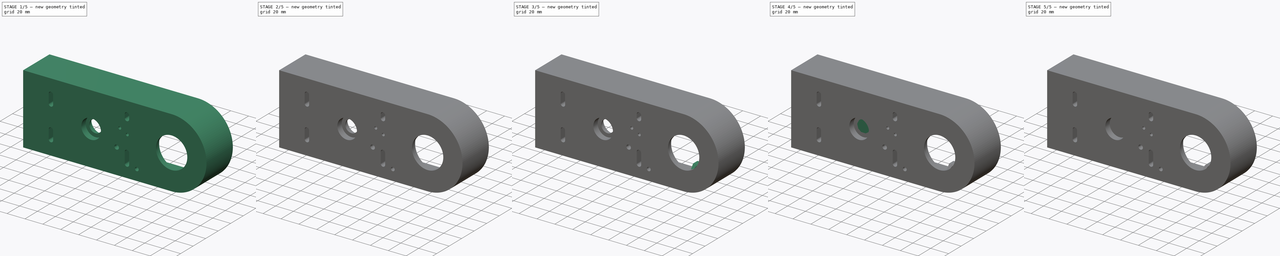
[diagram: build sequence overview — one tinted view per stage of 5, left to right]
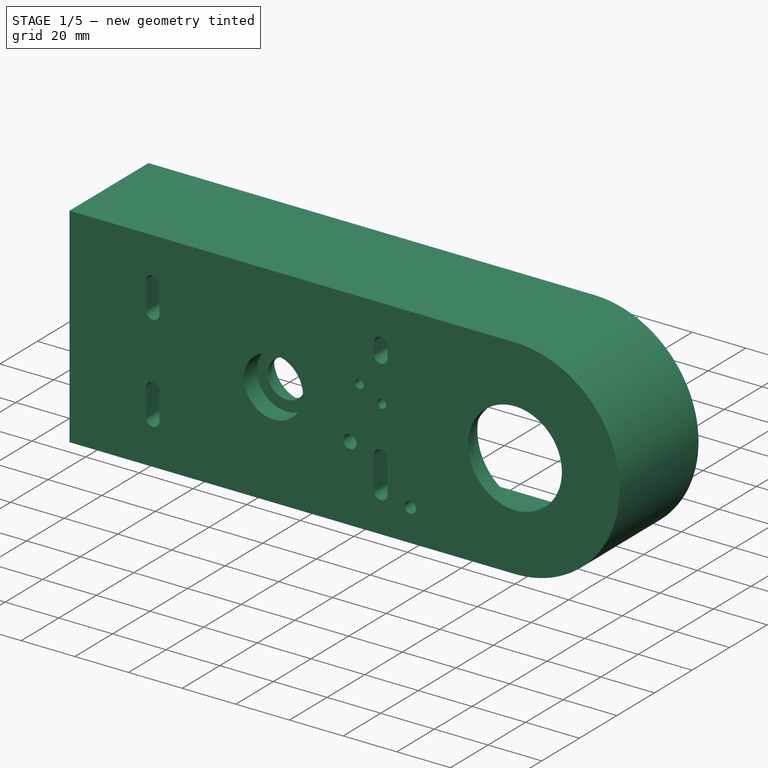
[diagram: stage 1 of 5 — iso view after this stage's code; geometry added in this stage tinted green]
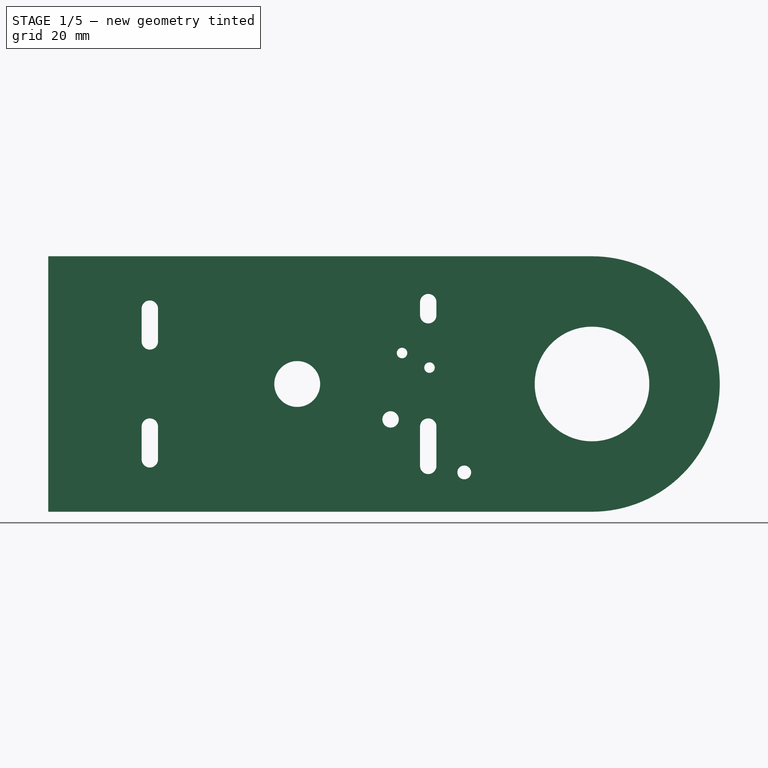
[diagram: stage 1 of 5 — front view after this stage's code; geometry added in this stage tinted green]
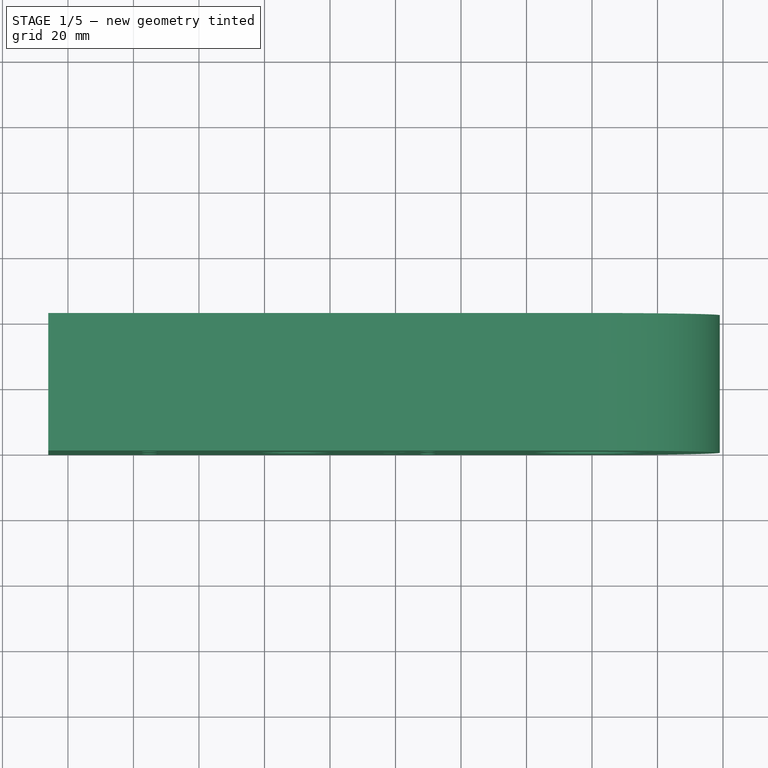
[diagram: stage 1 of 5 — top view after this stage's code; geometry added in this stage tinted green]
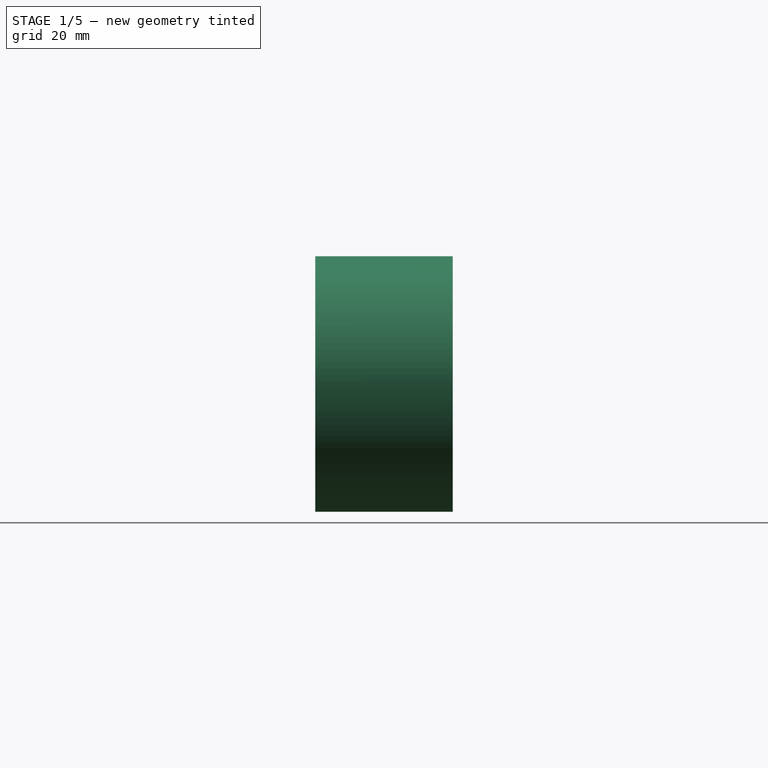
[diagram: stage 1 of 5 — right view after this stage's code; geometry added in this stage tinted green]
FCSTD DOCUMENT  (FreeCAD 0.19R)
Label: Arm1_modified
License: All rights reserved
LicenseURL: http://en.wikipedia.org/wiki/All_rights_reserved
objects: PartDesign::Pad×9, Sketcher::SketchObject×5, PartDesign::Pocket×3, Part::Feature×1, PartDesign::FeatureBase×1, PartDesign::Mirrored×1, PartDesign::Chamfer×1, PartDesign::Fillet×1, PartDesign::Body×1
note: 37 computed .brp shape members not serialized (recipe doc carries the construction recipe); baked Part::Feature solids carry a one-line shape summary decoded from their .brp

FEATURE [Part::Feature] Part__Feature  label="Arm 1_Arm 1"
  shape: bbox 205 x 42 x 78 mm, 134 faces (baked)
FEATURE [PartDesign::FeatureBase] BaseFeature
  BaseFeature = -> Part__Feature
FEATURE [PartDesign::Pad] Pad
  BaseFeature = -> BaseFeature
  Direction = (1,1,1)
  Length = 12
  Length2 = 100
  Profile = -> BaseFeature [Face103]
  Type = 0
FEATURE [PartDesign::Pad] Pad001
  BaseFeature = -> Pad
  Direction = (1,1,1)
  Length = 12
  Length2 = 100
  Profile = -> Pad [Face21]
  Type = 0
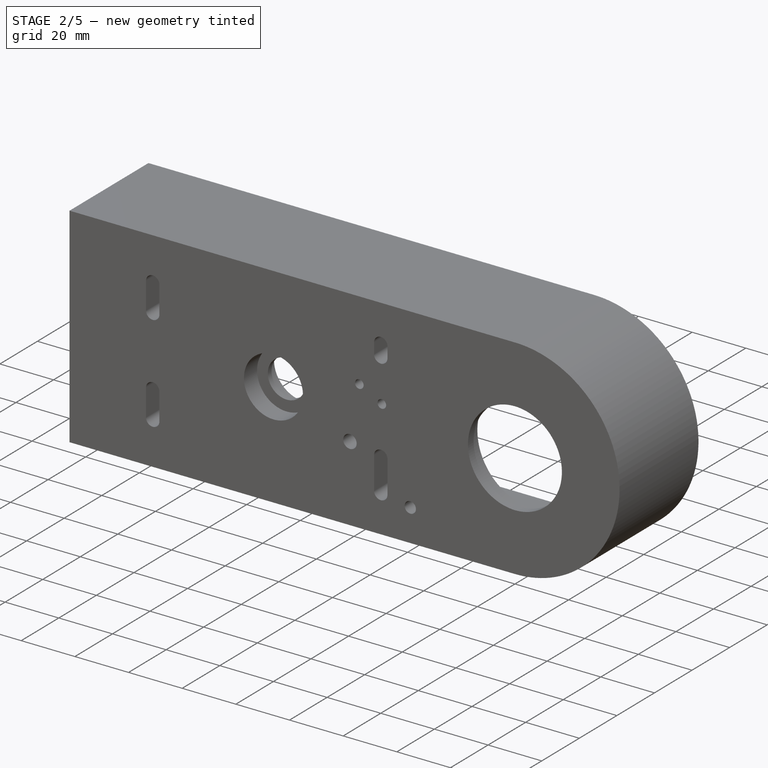
[diagram: stage 2 of 5 — iso view after this stage's code; geometry added in this stage tinted green]
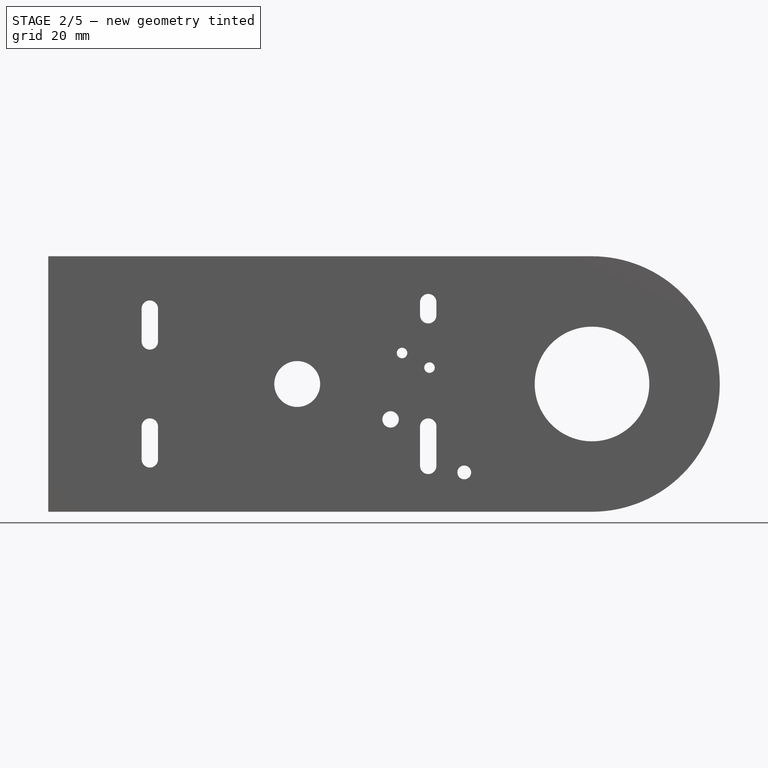
[diagram: stage 2 of 5 — front view after this stage's code; geometry added in this stage tinted green]
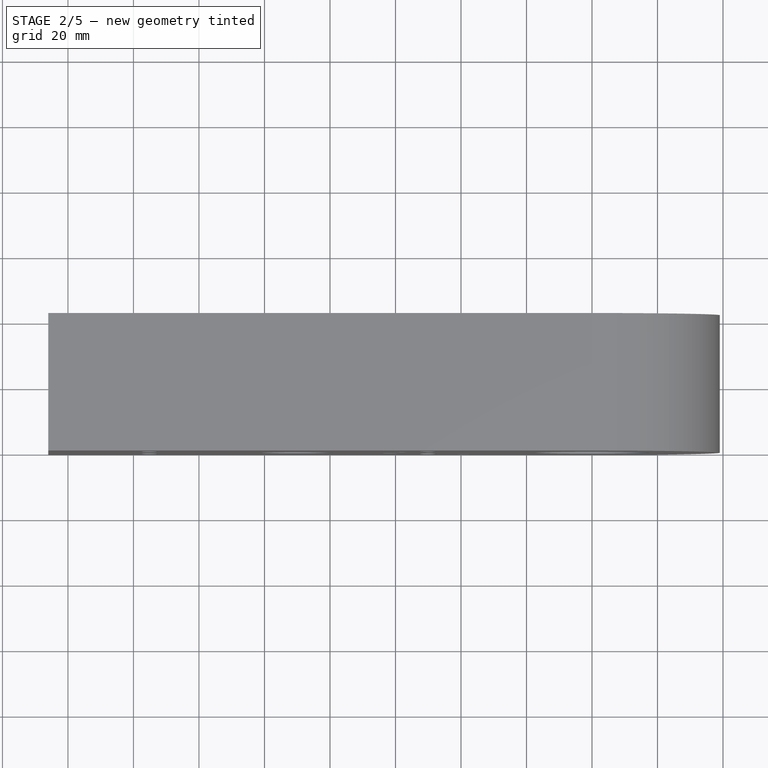
[diagram: stage 2 of 5 — top view after this stage's code; geometry added in this stage tinted green]
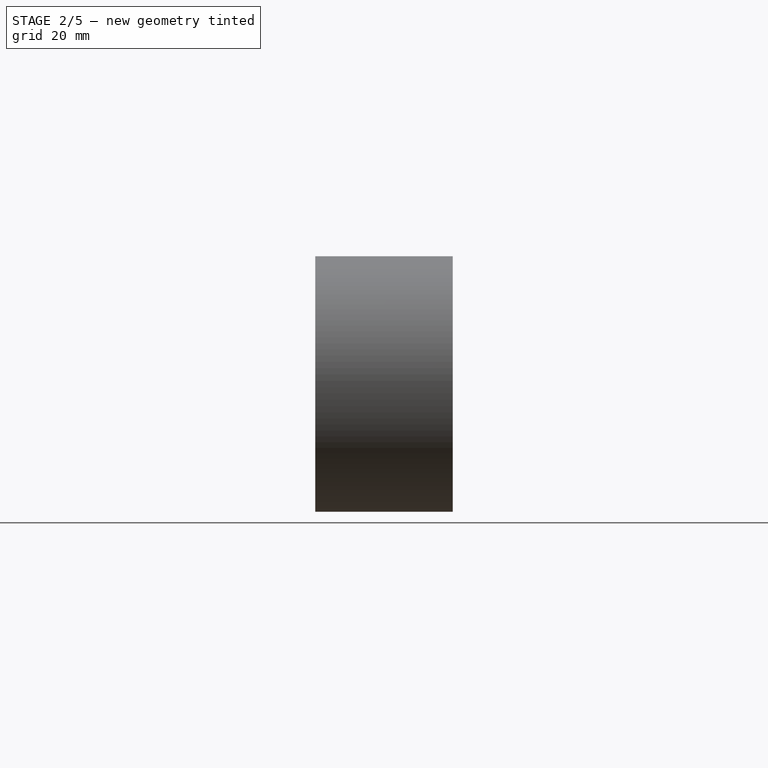
[diagram: stage 2 of 5 — right view after this stage's code; geometry added in this stage tinted green]
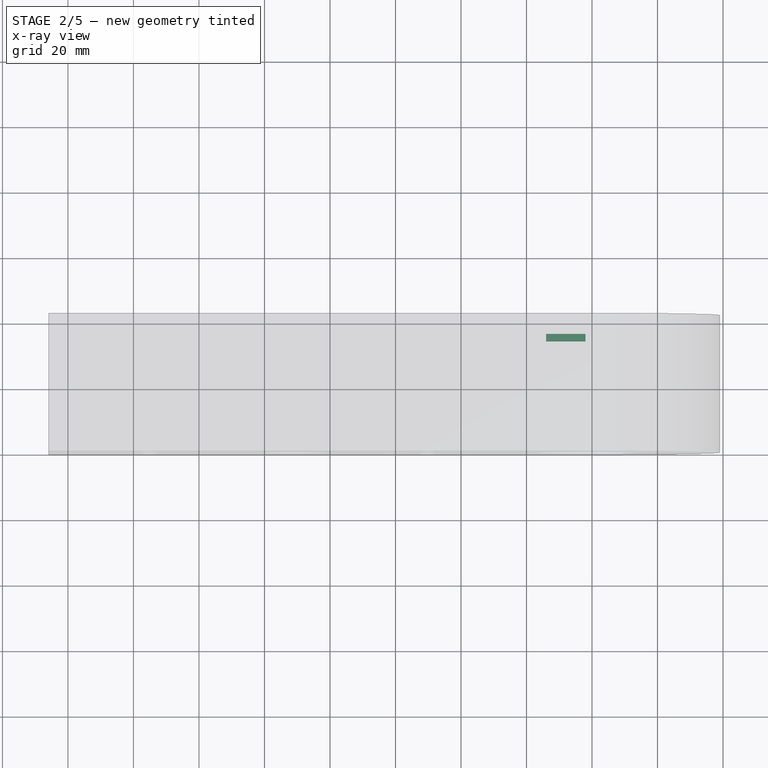
[diagram: stage 2 of 5 — x-ray composite at the top view; earlier geometry ghosted, this stage's added geometry solid]
FEATURE [PartDesign::Pad] Pad002
  BaseFeature = -> Pad001
  Direction = (1,1,1)
  Length = 12
  Length2 = 100
  Profile = -> Pad001 [Face17]
  Type = 0
FEATURE [PartDesign::Pad] Pad003
  BaseFeature = -> Pad002
  Direction = (1,1,1)
  Length = 12
  Length2 = 100
  Profile = -> Pad002 [Face23]
  Type = 0
FEATURE [PartDesign::Pad] Pad004
  BaseFeature = -> Pad003
  Direction = (1,1,1)
  Length = 12
  Length2 = 100
  Profile = -> Pad003 [Face28]
  Type = 0
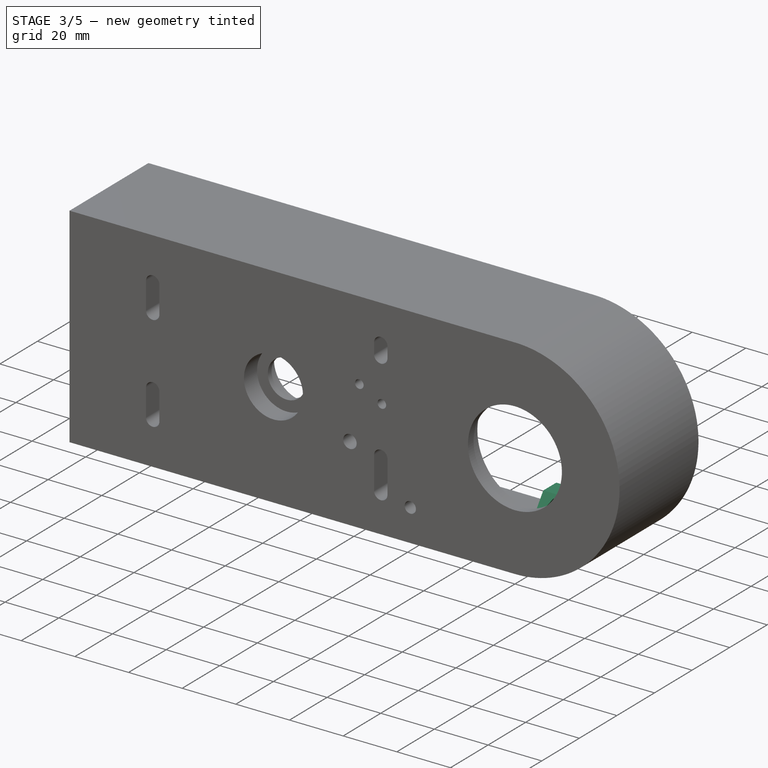
[diagram: stage 3 of 5 — iso view after this stage's code; geometry added in this stage tinted green]
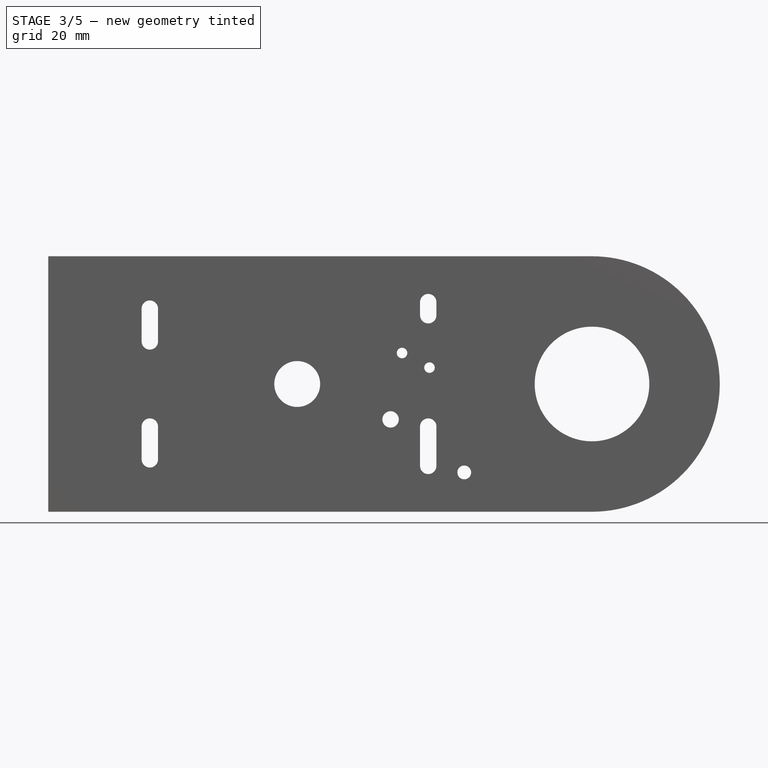
[diagram: stage 3 of 5 — front view after this stage's code; geometry added in this stage tinted green]
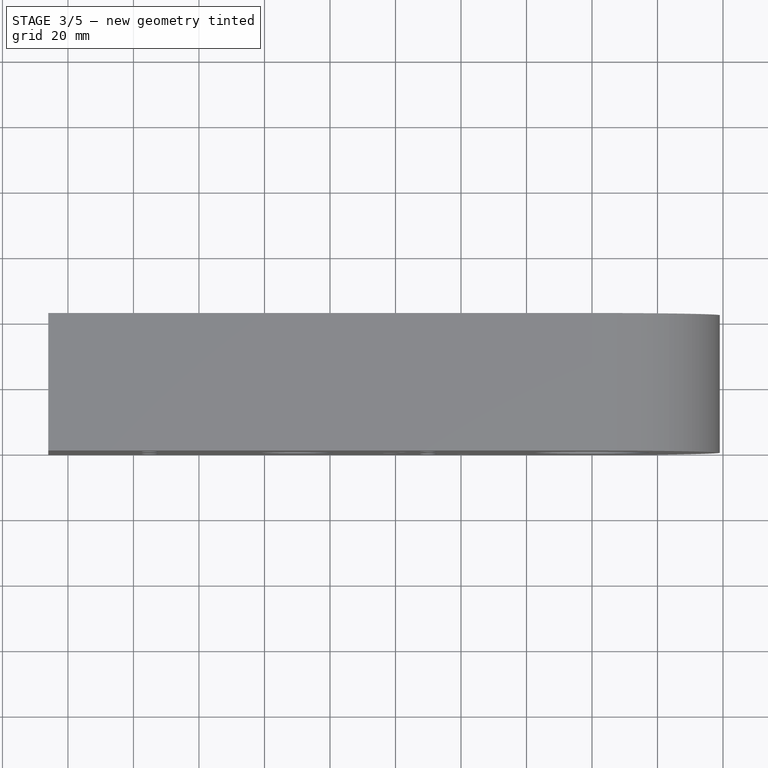
[diagram: stage 3 of 5 — top view after this stage's code; geometry added in this stage tinted green]
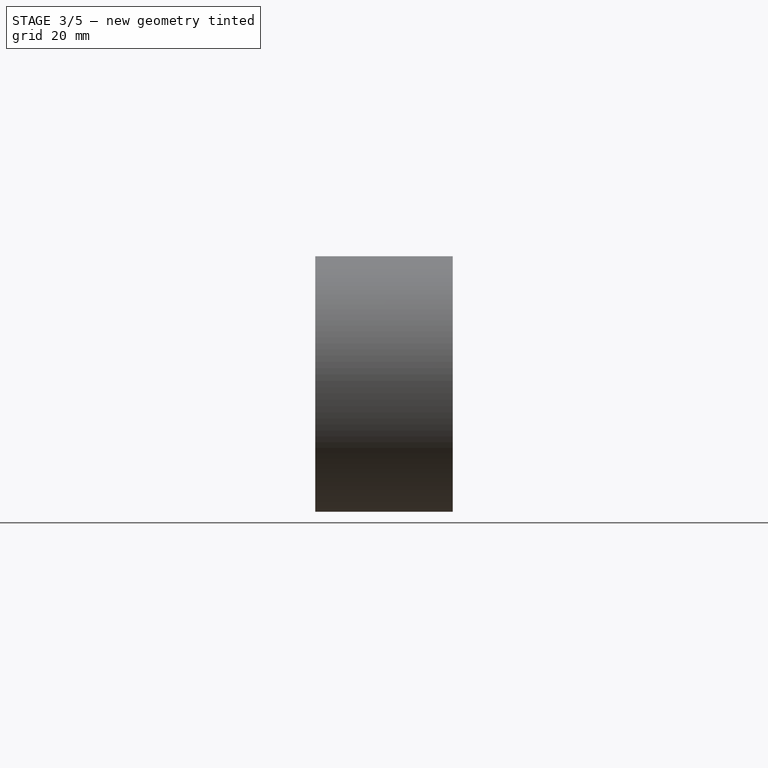
[diagram: stage 3 of 5 — right view after this stage's code; geometry added in this stage tinted green]
FEATURE [PartDesign::Pad] Pad005
  BaseFeature = -> Pad004
  Direction = (1,1,1)
  Length = 12
  Length2 = 100
  Profile = -> Pad004 [Face24]
  Type = 0
FEATURE [Sketcher::SketchObject] Sketch
  ExternalGeometry = -> [Pad005]
  FullyConstrained = true
  MapMode = 5
  Placement = pos=(0,42,0) rot=(0,0.707107,0.707107;3.14159rad)
  Support = -> [Pad005]
  sketch-geometry (40):
    g0: LineSegment StartX=2 StartY=35 StartZ=0 EndX=14 EndY=35 EndZ=0
    g1: LineSegment StartX=14 StartY=35 StartZ=0 EndX=14 EndY=28 EndZ=0
    g2: LineSegment StartX=14 StartY=28 StartZ=0 EndX=2 EndY=28 EndZ=0
    g3: LineSegment StartX=2 StartY=28 StartZ=0 EndX=2 EndY=35 EndZ=0
    g4: LineSegment StartX=66 StartY=35 StartZ=0 EndX=78 EndY=35 EndZ=0
    g5: LineSegment StartX=78 StartY=35 StartZ=0 EndX=78 EndY=28 EndZ=0
    g6: LineSegment StartX=78 StartY=28 StartZ=0 EndX=66 EndY=28 EndZ=0
    g7: LineSegment StartX=66 StartY=28 StartZ=0 EndX=66 EndY=35 EndZ=0
    g8: LineSegment StartX=130 StartY=35 StartZ=0 EndX=142 EndY=35 EndZ=0
    g9: LineSegment StartX=142 StartY=35 StartZ=0 EndX=142 EndY=28 EndZ=0
    g10: LineSegment StartX=142 StartY=28 StartZ=0 EndX=130 EndY=28 EndZ=0
    g11: LineSegment StartX=130 StartY=28 StartZ=0 EndX=130 EndY=35 EndZ=0
    g12: LineSegment StartX=2 StartY=-35 StartZ=0 EndX=14 EndY=-35 EndZ=0
    g13: LineSegment StartX=14 StartY=-35 StartZ=0 EndX=14 EndY=-28 EndZ=0
    g14: LineSegment StartX=14 StartY=-28 StartZ=0 EndX=2 EndY=-28 EndZ=0
    g15: LineSegment StartX=2 StartY=-28 StartZ=0 EndX=2 EndY=-35 EndZ=0
    g16: LineSegment StartX=66 StartY=-35 StartZ=0 EndX=78 EndY=-35 EndZ=0
    g17: LineSegment StartX=78 StartY=-35 StartZ=0 EndX=78 EndY=-28 EndZ=0
    g18: LineSegment StartX=78 StartY=-28 StartZ=0 EndX=66 EndY=-28 EndZ=0
    g19: LineSegment StartX=66 StartY=-28 StartZ=0 EndX=66 EndY=-35 EndZ=0
    g20: LineSegment StartX=130 StartY=-35 StartZ=0 EndX=142 EndY=-35 EndZ=0
    g21: LineSegment StartX=142 StartY=-35 StartZ=0 EndX=142 EndY=-28 EndZ=0
    g22: LineSegment StartX=142 StartY=-28 StartZ=0 EndX=130 EndY=-28 EndZ=0
    g23: LineSegment StartX=130 StartY=-28 StartZ=0 EndX=130 EndY=-35 EndZ=0
    g24: ArcOfCircle CenterX=0 CenterY=0 CenterZ=0 NormalX=0 NormalY=0 NormalZ=1 AngleXU=0 Radius=36 StartAngle=2.9671 EndAngle=3.31609
    g25: LineSegment StartX=-35.4533 StartY=6.25 StartZ=0 EndX=-27.4533 EndY=6.25 EndZ=0
    g26: LineSegment StartX=-27.4533 StartY=6.25 StartZ=0 EndX=-27.4533 EndY=-6.25 EndZ=0
    g27: LineSegment StartX=-27.4533 StartY=-6.25 StartZ=0 EndX=-35.4533 EndY=-6.25 EndZ=0
    g28: LineSegment StartX=-35.4533 StartY=-6.25 StartZ=0 EndX=-35.4533 EndY=6.25 EndZ=0
    g29: Circle CenterX=-32 CenterY=0 CenterZ=0 NormalX=0 NormalY=0 NormalZ=1 AngleXU=0 Radius=1.65
    g30: Circle CenterX=8 CenterY=32 CenterZ=0 NormalX=0 NormalY=0 NormalZ=1 AngleXU=0 Radius=1.65
    g31: Circle CenterX=72 CenterY=32 CenterZ=0 NormalX=0 NormalY=0 NormalZ=1 AngleXU=0 Radius=1.65
    g32: Circle CenterX=136 CenterY=32 CenterZ=0 NormalX=0 NormalY=0 NormalZ=1 AngleXU=0 Radius=1.65
    g33: Circle CenterX=136 CenterY=-32 CenterZ=0 NormalX=0 NormalY=0 NormalZ=1 AngleXU=0 Radius=1.65
    g34: Circle CenterX=72 CenterY=-32 CenterZ=0 NormalX=0 NormalY=0 NormalZ=1 AngleXU=0 Radius=1.65
    g35: Circle CenterX=8 CenterY=-32 CenterZ=0 NormalX=0 NormalY=0 NormalZ=1 AngleXU=0 Radius=1.65
    g36: LineSegment StartX=8 StartY=32 StartZ=0 EndX=136 EndY=32 EndZ=0
    g37: LineSegment StartX=136 StartY=32 StartZ=0 EndX=136 EndY=-32 EndZ=0
    g38: LineSegment StartX=136 StartY=-32 StartZ=0 EndX=8 EndY=-32 EndZ=0
    g39: LineSegment StartX=8 StartY=-32 StartZ=0 EndX=8 EndY=32 EndZ=0
  constraints (113):
    c: Coincident(g0,g1)
    c: Coincident(g1,g2)
    c: Coincident(g2,g3)
    c: Coincident(g3,g0)
    c: Horizontal(g0)
    c: Horizontal(g2)
    c: Vertical(g1)
    c: Vertical(g3)
    c: PointOnObject(g0,g-3)
    c: Coincident(g4,g5)
    c: Coincident(g5,g6)
    c: Coincident(g6,g7)
    c: Coincident(g7,g4)
    c: Horizontal(g4)
    c: Horizontal(g6)
    c: Vertical(g5)
    c: Vertical(g7)
    c: PointOnObject(g4,g-3)
    c: Coincident(g8,g9)
    c: Coincident(g9,g10)
    c: Coincident(g10,g11)
    c: Coincident(g11,g8)
    c: Horizontal(g8)
    c: Horizontal(g10)
    c: Vertical(g9)
    c: Vertical(g11)
    c: PointOnObject(g8,g-3)
    c: Coincident(g12,g13)
    c: Coincident(g13,g14)
    c: Coincident(g14,g15)
    c: Coincident(g15,g12)
    c: Horizontal(g12)
    c: Horizontal(g14)
    c: Vertical(g13)
    c: Vertical(g15)
    c: PointOnObject(g12,g-4)
    c: Coincident(g16,g17)
    c: Coincident(g17,g18)
    c: Coincident(g18,g19)
    c: Coincident(g19,g16)
    c: Horizontal(g16)
    c: Horizontal(g18)
    c: Vertical(g17)
    c: Vertical(g19)
    c: PointOnObject(g16,g-4)
    c: Coincident(g20,g21)
    c: Coincident(g21,g22)
    c: Coincident(g22,g23)
    c: Coincident(g23,g20)
    c: Horizontal(g20)
    c: Horizontal(g22)
    c: Vertical(g21)
    c: Vertical(g23)
    c: PointOnObject(g20,g-4)
    c: Coincident(g24,g-1)
    c: Coincident(g25,g26)
    c: Coincident(g26,g27)
    c: Coincident(g27,g28)
    c: Coincident(g28,g25)
    c: Horizontal(g25)
    c: Horizontal(g27)
    c: Coincident(g25,g24)
    c: Coincident(g27,g24)
    c: Symmetric(g25,g26,g-1)
    c: DistanceX(g0,g0) = 12
    c: Equal(g0,g4)
    c: Equal(g4,g8)
    c: Equal(g0,g12)
    c: Equal(g12,g16)
    c: Equal(g16,g20)
    c: Equal(g3,g7)
    c: Equal(g7,g11)
    c: Equal(g11,g23)
    c: Equal(g23,g19)
    c: Equal(g19,g15)
    c: DistanceX(g20,g-4) = 16
    c: DistanceX(g16,g20) = 52
    c: DistanceX(g12,g16) = 52
    c: Vertical(g1,g13)
    c: Vertical(g6,g18)
    c: Vertical(g10,g22)
    c: DistanceY(g9,g9) = 7
    c: PointOnObject(g29,g-1)
    c: Equal(g29,g30)
    c: Equal(g30,g31)
    c: Equal(g31,g32)
    c: Equal(g32,g33)
    c: Equal(g33,g34)
    c: Equal(g34,g35)
    c: Radius(g29) = 1.65
    c: Radius(g24) = 36
    c: DistanceX(g25,g25) = 8
    c: Coincident(g36,g37)
    c: Coincident(g37,g38)
    c: Coincident(g38,g39)
    c: Coincident(g39,g36)
    c: Horizontal(g36)
    c: Horizontal(g38)
    c: Vertical(g37)
    c: Coincident(g36,g30)
    c: Coincident(g37,g33)
    c: Coincident(g35,g38)
    c: PointOnObject(g34,g38)
    c: Coincident(g32,g36)
    c: PointOnObject(g31,g36)
    c: DistanceY(g39,g39) = 64
    c: DistanceX(g30,g31) = 64
    c: DistanceX(g31,g32) = 64
    c: Vertical(g34,g31)
    c: Symmetric(g35,g30,g-1)
    c: DistanceX(g30) = 8
    c: DistanceX(g29) = -32
    c: DistanceY(g26,g26) = 12.5
FEATURE [PartDesign::Pad] Pad006
  BaseFeature = -> Pad005
  Direction = (1,1,1)
  Length = 12
  Length2 = 100
  Profile = -> Sketch
  Reversed = true
  Type = 0
FEATURE [Sketcher::SketchObject] Sketch001
  ExternalGeometry = -> [Pad006]
  FullyConstrained = true
  MapMode = 5
  Placement = pos=(0,30,0) rot=(1,0,0;1.5708rad)
  Support = -> [Pad006]
  sketch-geometry (49):
    g0: LineSegment StartX=-134.383 StartY=-34.8 StartZ=0 EndX=-132.767 EndY=-32 EndZ=0
    g1: LineSegment StartX=-132.767 StartY=-32 StartZ=0 EndX=-134.383 EndY=-29.2 EndZ=0
    g2: LineSegment StartX=-134.383 StartY=-29.2 StartZ=0 EndX=-137.617 EndY=-29.2 EndZ=0
    g3: LineSegment StartX=-137.617 StartY=-29.2 StartZ=0 EndX=-139.233 EndY=-32 EndZ=0
    g4: LineSegment StartX=-139.233 StartY=-32 StartZ=0 EndX=-137.617 EndY=-34.8 EndZ=0
    g5: LineSegment StartX=-137.617 StartY=-34.8 StartZ=0 EndX=-134.383 EndY=-34.8 EndZ=0
    g6: Circle CenterX=-136 CenterY=-32 CenterZ=0 NormalX=0 NormalY=0 NormalZ=1 AngleXU=0 Radius=3.23316
    g7: LineSegment StartX=-70.3834 StartY=-34.8 StartZ=0 EndX=-68.7668 EndY=-32 EndZ=0
    g8: LineSegment StartX=-68.7668 StartY=-32 StartZ=0 EndX=-70.3834 EndY=-29.2 EndZ=0
    g9: LineSegment StartX=-70.3834 StartY=-29.2 StartZ=0 EndX=-73.6166 EndY=-29.2 EndZ=0
    g10: LineSegment StartX=-73.6166 StartY=-29.2 StartZ=0 EndX=-75.2332 EndY=-32 EndZ=0
    g11: LineSegment StartX=-75.2332 StartY=-32 StartZ=0 EndX=-73.6166 EndY=-34.8 EndZ=0
    g12: LineSegment StartX=-73.6166 StartY=-34.8 StartZ=0 EndX=-70.3834 EndY=-34.8 EndZ=0
    g13: Circle CenterX=-72 CenterY=-32 CenterZ=0 NormalX=0 NormalY=0 NormalZ=1 AngleXU=0 Radius=3.23316
    g14: LineSegment StartX=-6.38342 StartY=-34.8 StartZ=0 EndX=-4.76684 EndY=-32 EndZ=0
    g15: LineSegment StartX=-4.76684 StartY=-32 StartZ=0 EndX=-6.38342 EndY=-29.2 EndZ=0
    g16: LineSegment StartX=-6.38342 StartY=-29.2 StartZ=0 EndX=-9.61658 EndY=-29.2 EndZ=0
    g17: LineSegment StartX=-9.61658 StartY=-29.2 StartZ=0 EndX=-11.2332 EndY=-32 EndZ=0
    g18: LineSegment StartX=-11.2332 StartY=-32 StartZ=0 EndX=-9.61658 EndY=-34.8 EndZ=0
    g19: LineSegment StartX=-9.61658 StartY=-34.8 StartZ=0 EndX=-6.38342 EndY=-34.8 EndZ=0
    g20: Circle CenterX=-8 CenterY=-32 CenterZ=0 NormalX=0 NormalY=0 NormalZ=1 AngleXU=0 Radius=3.23316
    g21: LineSegment StartX=34.8 StartY=-1.61658 StartZ=0 EndX=34.8 EndY=1.61658 EndZ=0
    g22: LineSegment StartX=34.8 StartY=1.61658 StartZ=0 EndX=32 EndY=3.23316 EndZ=0
    g23: LineSegment StartX=32 StartY=3.23316 StartZ=0 EndX=29.2 EndY=1.61658 EndZ=0
    g24: LineSegment StartX=29.2 StartY=1.61658 StartZ=0 EndX=29.2 EndY=-1.61658 EndZ=0
    g25: LineSegment StartX=29.2 StartY=-1.61658 StartZ=0 EndX=32 EndY=-3.23316 EndZ=0
    g26: LineSegment StartX=32 StartY=-3.23316 StartZ=0 EndX=34.8 EndY=-1.61658 EndZ=0
    g27: Circle CenterX=32 CenterY=2.7e-15 CenterZ=0 NormalX=0 NormalY=0 NormalZ=1 AngleXU=0 Radius=3.23316
    g28: LineSegment StartX=-6.38342 StartY=34.8 StartZ=0 EndX=-9.61658 EndY=34.8 EndZ=0
    g29: LineSegment StartX=-9.61658 StartY=34.8 StartZ=0 EndX=-11.2332 EndY=32 EndZ=0
    g30: LineSegment StartX=-11.2332 StartY=32 StartZ=0 EndX=-9.61658 EndY=29.2 EndZ=0
    g31: LineSegment StartX=-9.61658 StartY=29.2 StartZ=0 EndX=-6.38342 EndY=29.2 EndZ=0
    g32: LineSegment StartX=-6.38342 StartY=29.2 StartZ=0 EndX=-4.76684 EndY=32 EndZ=0
    g33: LineSegment StartX=-4.76684 StartY=32 StartZ=0 EndX=-6.38342 EndY=34.8 EndZ=0
    g34: Circle CenterX=-8 CenterY=32 CenterZ=0 NormalX=0 NormalY=0 NormalZ=1 AngleXU=0 Radius=3.23316
    g35: LineSegment StartX=-70.3834 StartY=34.8 StartZ=0 EndX=-73.6166 EndY=34.8 EndZ=0
    g36: LineSegment StartX=-73.6166 StartY=34.8 StartZ=0 EndX=-75.2332 EndY=32 EndZ=0
    g37: LineSegment StartX=-75.2332 StartY=32 StartZ=0 EndX=-73.6166 EndY=29.2 EndZ=0
    g38: LineSegment StartX=-73.6166 StartY=29.2 StartZ=0 EndX=-70.3834 EndY=29.2 EndZ=0
    g39: LineSegment StartX=-70.3834 StartY=29.2 StartZ=0 EndX=-68.7668 EndY=32 EndZ=0
    g40: LineSegment StartX=-68.7668 StartY=32 StartZ=0 EndX=-70.3834 EndY=34.8 EndZ=0
    g41: Circle CenterX=-72 CenterY=32 CenterZ=0 NormalX=0 NormalY=0 NormalZ=1 AngleXU=0 Radius=3.23316
    g42: LineSegment StartX=-134.383 StartY=34.8 StartZ=0 EndX=-137.617 EndY=34.8 EndZ=0
    g43: LineSegment StartX=-137.617 StartY=34.8 StartZ=0 EndX=-139.233 EndY=32 EndZ=0
    g44: LineSegment StartX=-139.233 StartY=32 StartZ=0 EndX=-137.617 EndY=29.2 EndZ=0
    g45: LineSegment StartX=-137.617 StartY=29.2 StartZ=0 EndX=-134.383 EndY=29.2 EndZ=0
    g46: LineSegment StartX=-134.383 StartY=29.2 StartZ=0 EndX=-132.767 EndY=32 EndZ=0
    g47: LineSegment StartX=-132.767 StartY=32 StartZ=0 EndX=-134.383 EndY=34.8 EndZ=0
    g48: Circle CenterX=-136 CenterY=32 CenterZ=0 NormalX=0 NormalY=0 NormalZ=1 AngleXU=0 Radius=3.23316
  constraints (112):
    c: Coincident(g0,g1)
    c: Coincident(g1,g2)
    c: Coincident(g2,g3)
    c: Coincident(g3,g4)
    c: Coincident(g4,g5)
    c: Coincident(g5,g0)
    c: Equal(g0, g1-g5) x5
    c: PointOnObject(g0,g6)
    c: PointOnObject(g1,g6)
    c: PointOnObject(g2,g6)
    c: PointOnObject(g3,g6)
    c: PointOnObject(g4,g6)
    c: PointOnObject(g5,g6)
    c: Coincident(g6,g-3)
    c: Coincident(g7,g8)
    c: Coincident(g8,g9)
    c: Coincident(g9,g10)
    c: Coincident(g10,g11)
    c: Coincident(g11,g12)
    c: Coincident(g12,g7)
    c: Equal(g7, g8-g12) x5
    c: PointOnObject(g7,g13)
    c: PointOnObject(g8,g13)
    c: PointOnObject(g9,g13)
    c: PointOnObject(g10,g13)
    c: PointOnObject(g11,g13)
    c: PointOnObject(g12,g13)
    c: Coincident(g13,g-9)
    c: Coincident(g14,g15)
    c: Coincident(g15,g16)
    c: Coincident(g16,g17)
    c: Coincident(g17,g18)
    c: Coincident(g18,g19)
    c: Coincident(g19,g14)
    c: Equal(g14, g15-g19) x5
    c: PointOnObject(g14,g20)
    c: PointOnObject(g15,g20)
    c: PointOnObject(g16,g20)
    c: PointOnObject(g17,g20)
    c: PointOnObject(g18,g20)
    c: PointOnObject(g19,g20)
    c: Coincident(g20,g-8)
    c: Coincident(g21,g22)
    c: Coincident(g22,g23)
    c: Coincident(g23,g24)
    c: Coincident(g24,g25)
    c: Coincident(g25,g26)
    c: Coincident(g26,g21)
    c: Equal(g21, g22-g26) x5
    c: PointOnObject(g21,g27)
    c: PointOnObject(g22,g27)
    c: PointOnObject(g23,g27)
    c: PointOnObject(g24,g27)
    c: PointOnObject(g25,g27)
    c: PointOnObject(g26,g27)
    c: Coincident(g28,g29)
    c: Coincident(g29,g30)
    c: Coincident(g30,g31)
    c: Coincident(g31,g32)
    c: Coincident(g32,g33)
    c: Coincident(g33,g28)
    c: Equal(g28, g29-g33) x5
    c: PointOnObject(g28,g34)
    c: PointOnObject(g29,g34)
    c: PointOnObject(g30,g34)
    c: PointOnObject(g31,g34)
    c: PointOnObject(g32,g34)
    c: PointOnObject(g33,g34)
    c: Coincident(g34,g-6)
    c: Coincident(g35,g36)
    c: Coincident(g36,g37)
    c: Coincident(g37,g38)
    c: Coincident(g38,g39)
    c: Coincident(g39,g40)
    c: Coincident(g40,g35)
    c: Equal(g35, g36-g40) x5
    c: PointOnObject(g35,g41)
    c: PointOnObject(g36,g41)
    c: PointOnObject(g37,g41)
    c: PointOnObject(g38,g41)
    c: PointOnObject(g39,g41)
    c: PointOnObject(g40,g41)
    c: Coincident(g41,g-5)
    c: Coincident(g42,g43)
    c: Coincident(g43,g44)
    c: Coincident(g44,g45)
    c: Coincident(g45,g46)
    c: Coincident(g46,g47)
    c: Coincident(g47,g42)
    c: Equal(g42, g43-g47) x5
    c: PointOnObject(g42,g48)
    c: PointOnObject(g43,g48)
    c: PointOnObject(g44,g48)
    c: PointOnObject(g45,g48)
    c: PointOnObject(g46,g48)
    c: PointOnObject(g47,g48)
    c: Coincident(g48,g-4)
    c: Horizontal(g42)
    c: Horizontal(g35)
    c: Horizontal(g28)
    c: Vertical(g21)
    c: Horizontal(g16)
    c: Horizontal(g9)
    c: Horizontal(g2)
    c: Equal(g48,g6)
    c: Equal(g6,g13)
    c: Equal(g13,g41)
    c: Equal(g41,g20)
    c: Equal(g20,g34)
    c: Equal(g34,g27)
    c: DistanceY(g44,g42) = 5.6
    c: Coincident(g27,g-7)
FEATURE [PartDesign::Pocket] Pocket
  BaseFeature = -> Pad006
  Length = 7
  Length2 = 100
  Profile = -> Sketch001
  Type = 0
FEATURE [Sketcher::SketchObject] Sketch002
  ExternalGeometry = -> [Pocket]
  FullyConstrained = true
  MapMode = 5
  Placement = pos=(-142,0,0) rot=(0.57735,-0.57735,-0.57735;2.0944rad)
  Support = -> [Pocket]
  sketch-geometry (3):
    g0: LineSegment StartX=-35.0785 StartY=-28 StartZ=0 EndX=-30 EndY=-28 EndZ=0
    g1: LineSegment StartX=-35.0785 StartY=-28 StartZ=0 EndX=-30 EndY=-34.99 EndZ=0
    g2: LineSegment StartX=-30 StartY=-34.99 StartZ=0 EndX=-30 EndY=-28 EndZ=0
  constraints (8):
    c: Coincident(g0,g1)
    c: Coincident(g1,g2)
    c: Coincident(g2,g0)
    c: Angle(g2,g1) = 0.628319
    c: DistanceY(g2,g2) = 6.99
    c: Coincident(g0,g-3)
    c: Vertical(g2)
    c: Horizontal(g0)
FEATURE [PartDesign::Pocket] Pocket001
  BaseFeature = -> Pocket
  Length = 140
  Length2 = 100
  Profile = -> Sketch002
  Type = 0
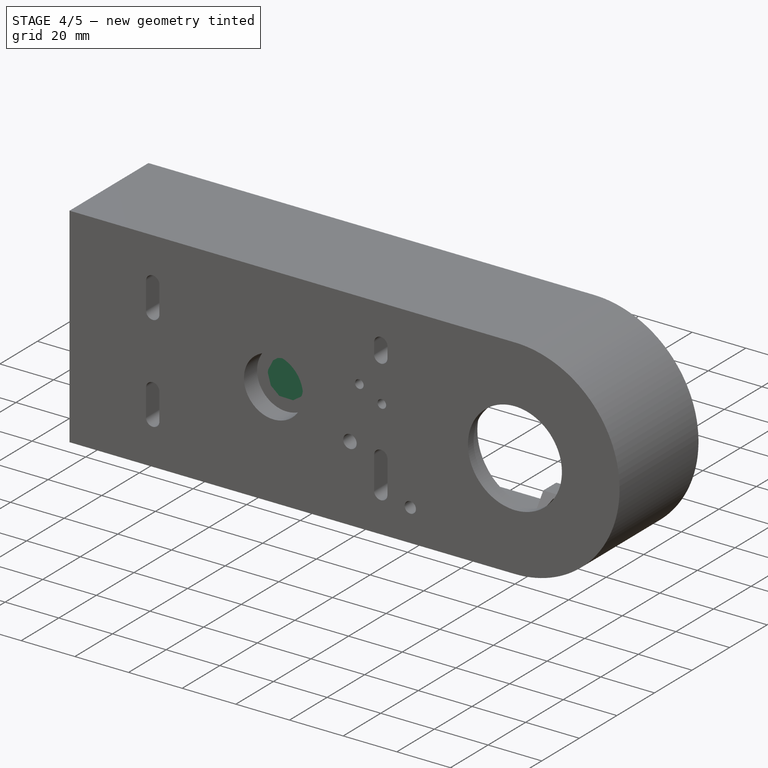
[diagram: stage 4 of 5 — iso view after this stage's code; geometry added in this stage tinted green]
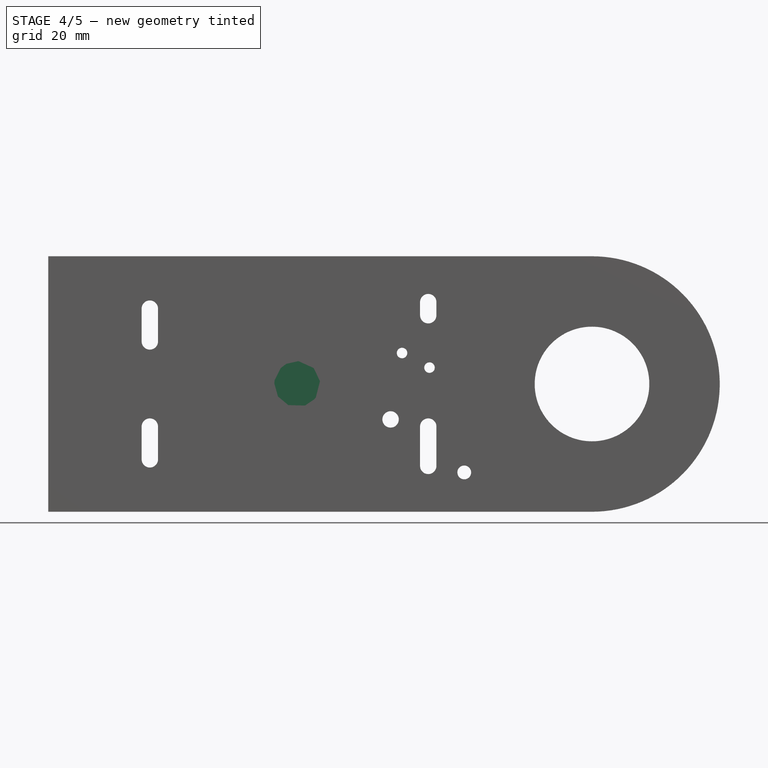
[diagram: stage 4 of 5 — front view after this stage's code; geometry added in this stage tinted green]
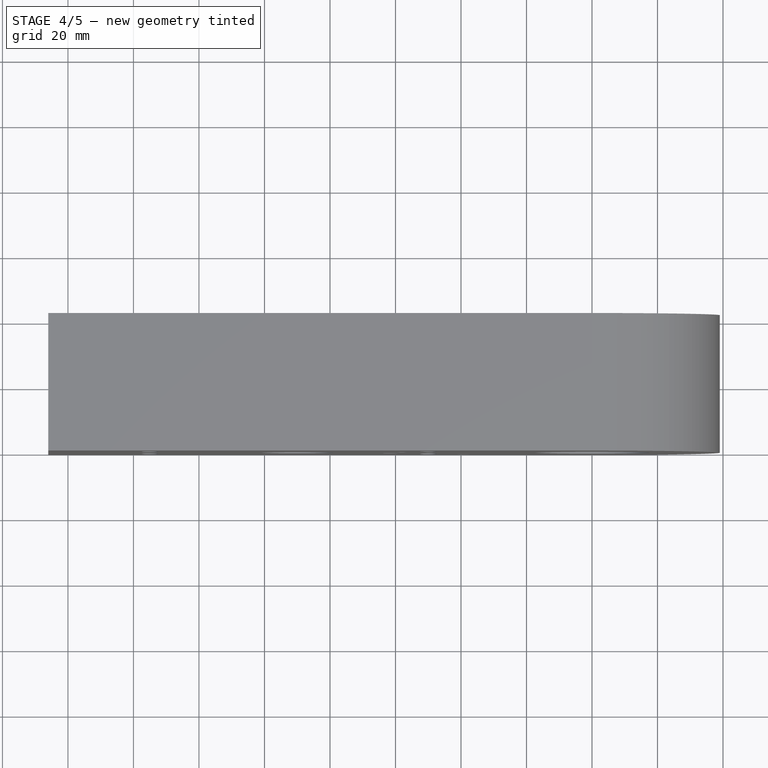
[diagram: stage 4 of 5 — top view after this stage's code; geometry added in this stage tinted green]
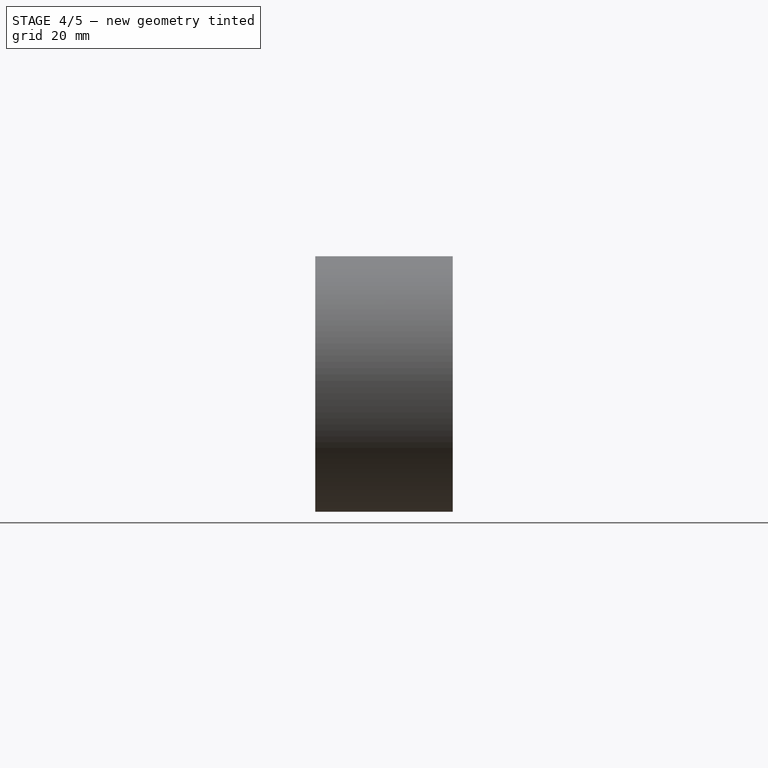
[diagram: stage 4 of 5 — right view after this stage's code; geometry added in this stage tinted green]
FEATURE [PartDesign::Mirrored] Mirrored
  BaseFeature = -> Pocket001
  MirrorPlane = -> XY_Plane
  Originals = -> [Pocket001]
FEATURE [Sketcher::SketchObject] Sketch003
  ExternalGeometry = -> [Mirrored]
  FullyConstrained = true
  MapMode = 5
  Placement = pos=(0,-1.4e-15,-6.25) rot=(1,0,0;3.14159rad)
  Support = -> [Mirrored]
  sketch-geometry (3):
    g0: LineSegment StartX=27.4533 StartY=-30 StartZ=0 EndX=34.4433 EndY=-30 EndZ=0
    g1: LineSegment StartX=34.4433 StartY=-30 StartZ=0 EndX=27.4533 EndY=-35.0785 EndZ=0
    g2: LineSegment StartX=27.4533 StartY=-35.0785 StartZ=0 EndX=27.4533 EndY=-30 EndZ=0
  constraints (8):
    c: Horizontal(g0)
    c: Coincident(g0,g1)
    c: Coincident(g1,g2)
    c: Coincident(g2,g0)
    c: Angle(g0,g1) = 0.628319
    c: DistanceX(g0,g0) = 6.99
    c: Coincident(g0,g-3)
    c: Vertical(g2)
FEATURE [PartDesign::Pocket] Pocket002
  BaseFeature = -> Mirrored
  Length = 12.5
  Length2 = 100
  Profile = -> Sketch003
  Type = 0
FEATURE [PartDesign::Pad] Pad007
  BaseFeature = -> Pocket002
  Direction = (1,1,1)
  Length = 0.4
  Length2 = 100
  Profile = -> Pocket002 [Edge502,Edge503]
  Reversed = true
  Type = 0
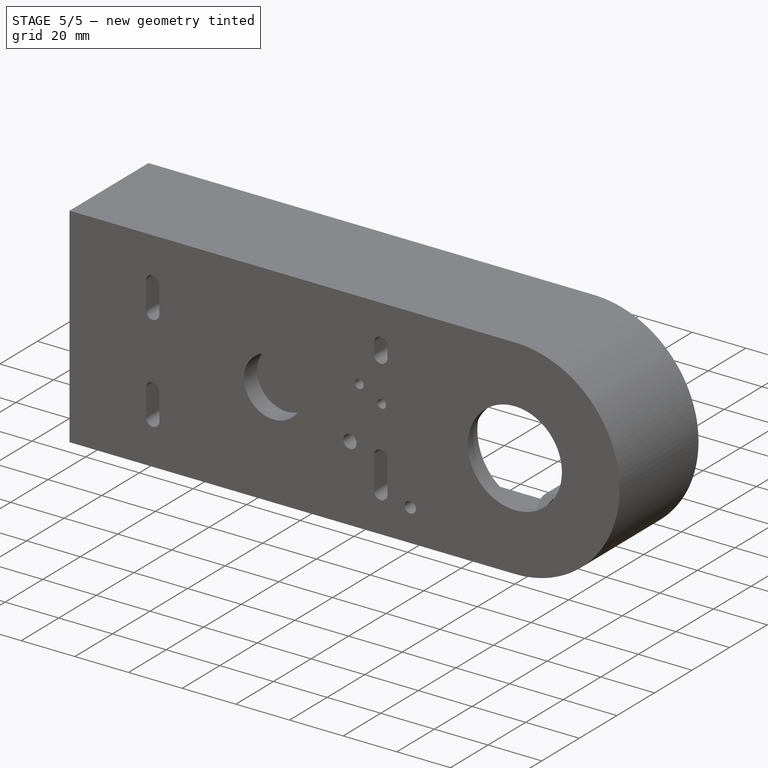
[diagram: stage 5 of 5 — iso view after this stage's code; geometry added in this stage tinted green]
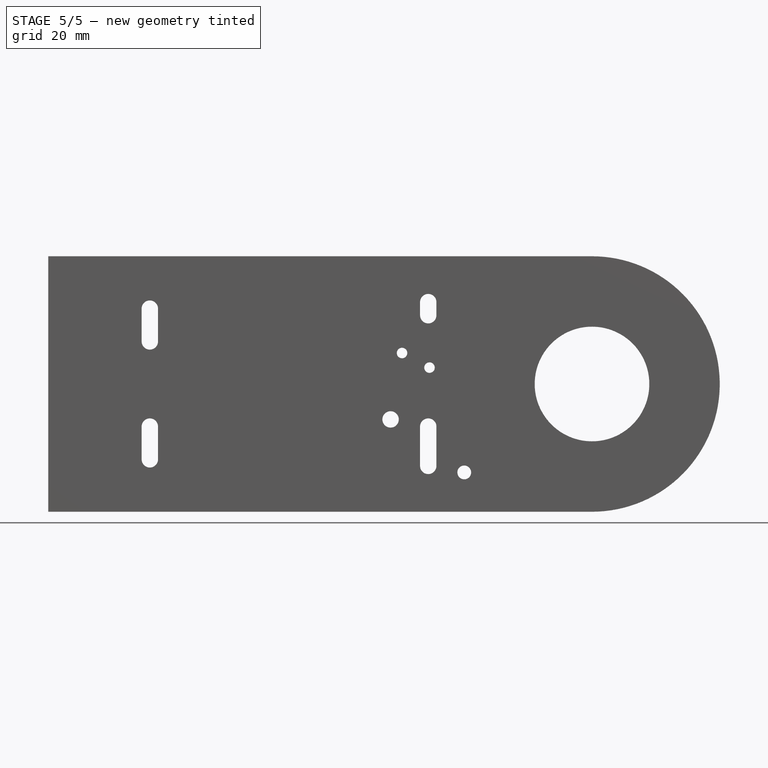
[diagram: stage 5 of 5 — front view after this stage's code; geometry added in this stage tinted green]
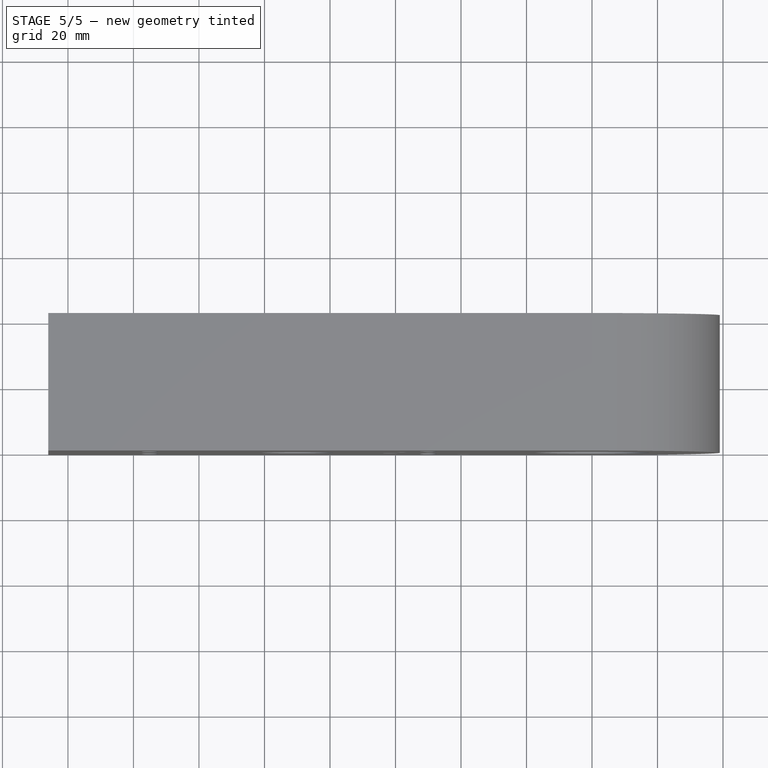
[diagram: stage 5 of 5 — top view after this stage's code; geometry added in this stage tinted green]
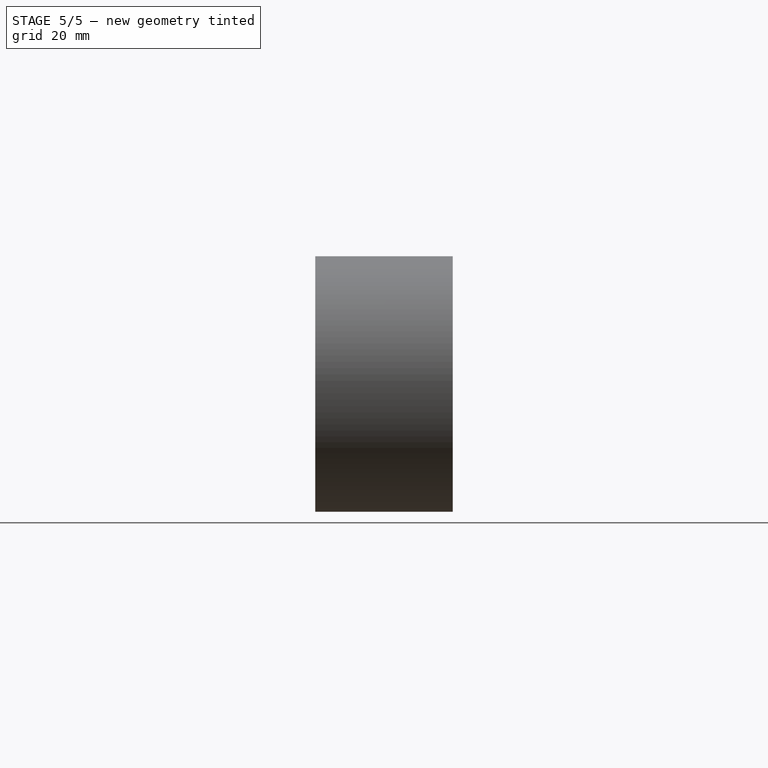
[diagram: stage 5 of 5 — right view after this stage's code; geometry added in this stage tinted green]
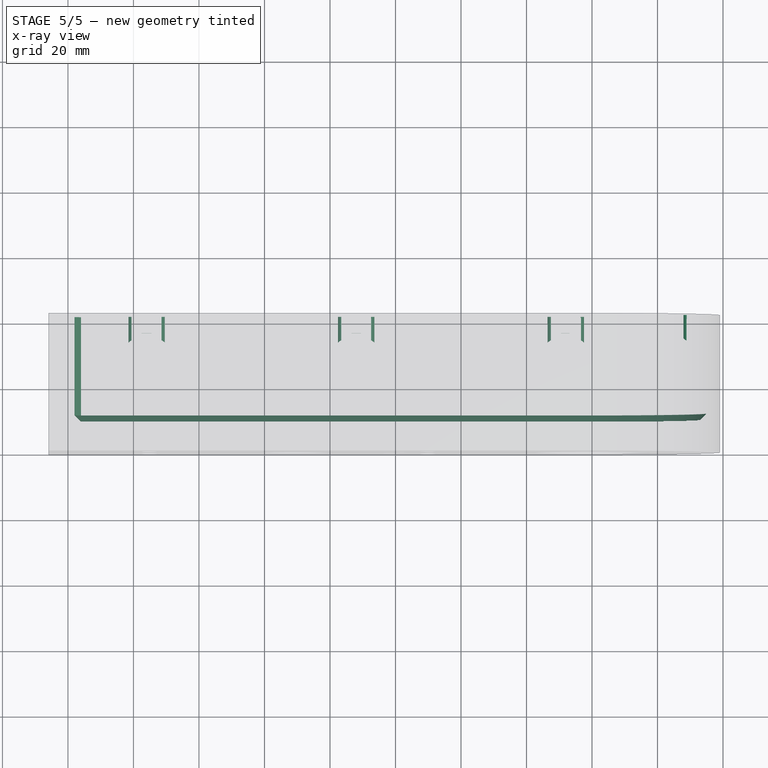
[diagram: stage 5 of 5 — x-ray composite at the top view; earlier geometry ghosted, this stage's added geometry solid]
FEATURE [Sketcher::SketchObject] Sketch004
  ExternalGeometry = -> [Pad007]
  FullyConstrained = true
  MapMode = 5
  Placement = pos=(0,37,0) rot=(1,0,0;1.5708rad)
  Support = -> [Pad007]
  sketch-geometry (7):
    g0: Circle CenterX=32 CenterY=1.1e-15 CenterZ=0 NormalX=0 NormalY=0 NormalZ=1 AngleXU=0 Radius=1.65
    g1: Circle CenterX=-8 CenterY=-32 CenterZ=0 NormalX=0 NormalY=0 NormalZ=1 AngleXU=0 Radius=1.65
    g2: Circle CenterX=-72 CenterY=-32 CenterZ=0 NormalX=0 NormalY=0 NormalZ=1 AngleXU=0 Radius=1.65
    g3: Circle CenterX=-136 CenterY=-32 CenterZ=0 NormalX=0 NormalY=0 NormalZ=1 AngleXU=0 Radius=1.65
    g4: Circle CenterX=-136 CenterY=32 CenterZ=0 NormalX=0 NormalY=0 NormalZ=1 AngleXU=0 Radius=1.65
    g5: Circle CenterX=-72 CenterY=32 CenterZ=0 NormalX=0 NormalY=0 NormalZ=1 AngleXU=0 Radius=1.65
    g6: Circle CenterX=-8 CenterY=32 CenterZ=0 NormalX=0 NormalY=0 NormalZ=1 AngleXU=0 Radius=1.65
  constraints (14):
    c: Coincident(g0,g-8)
    c: Coincident(g1,g-9)
    c: Coincident(g2,g-4)
    c: Coincident(g3,g-3)
    c: Coincident(g4,g-5)
    c: Coincident(g5,g-6)
    c: Coincident(g6,g-7)
    c: Equal(g0,g1)
    c: Equal(g1,g2)
    c: Equal(g2,g3)
    c: Equal(g3,g4)
    c: Equal(g4,g5)
    c: Equal(g5,g6)
    c: Radius(g0) = 1.65
FEATURE [PartDesign::Pad] Pad008
  BaseFeature = -> Pad007
  Direction = (1,1,1)
  Length = 0.4
  Length2 = 100
  Profile = -> Sketch004
  Reversed = true
  Type = 0
FEATURE [PartDesign::Chamfer] Chamfer
  Angle = 45
  Base = -> Pad008 [Edge106,Edge108,Edge107,Edge55]
  BaseFeature = -> Pad008
  ChamferType = 0
  FlipDirection = false
  Size = 1.99
  Size2 = 1
  SupportTransform = false
FEATURE [PartDesign::Fillet] Fillet
  Base = -> Chamfer [Edge210,Edge220,Edge224,Edge223,Edge215,Edge209,Edge247,Edge243,Edge163,Edge168,Edge176,Edge170,Edge165,Edge153]
  BaseFeature = -> Chamfer
  Radius = 3
  SupportTransform = false
FEATURE [PartDesign::Body] Body
  BaseFeature = -> Part__Feature
  Group = -> [BaseFeature,Pad,Pad001,Pad002,Pad003,Pad004,Pad005,Sketch,Pad006,Sketch001,Pocket,Sketch002,Pocket001,Mirrored,Sketch003,Pocket002,Pad007,Sketch004,Pad008,Chamfer,Fillet]
  Origin = -> Origin
  Placement = pos=(0,0,0) rot=(1,0,0;1.5708rad)
  Tip = -> Fillet
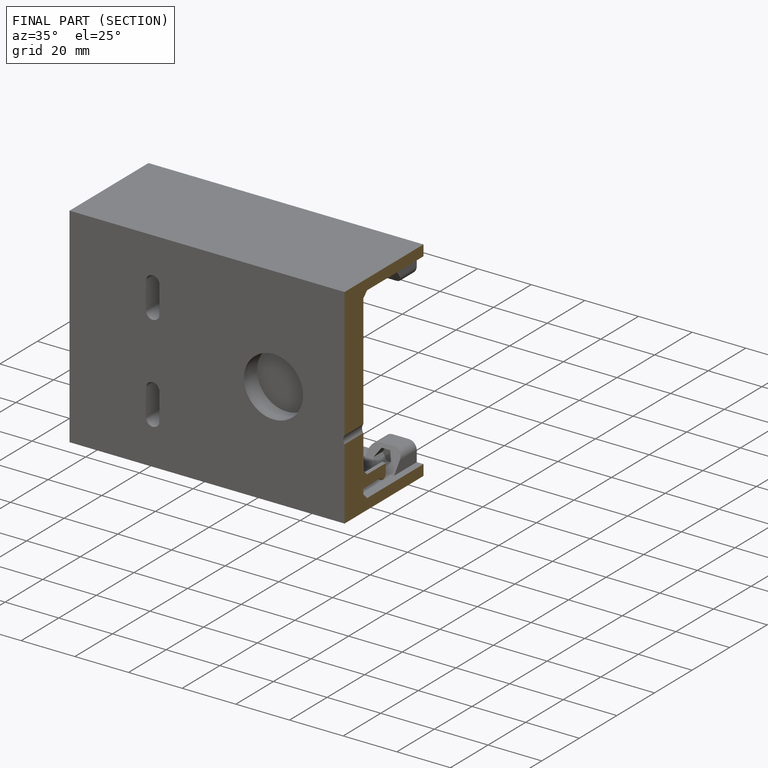
[diagram: finished part — half-section view (interior)]
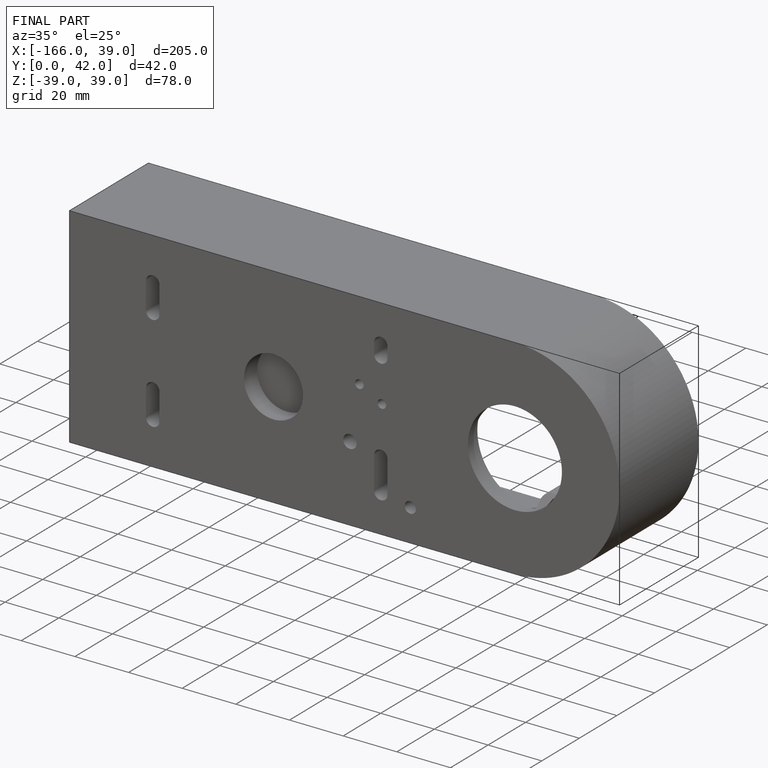
[diagram: finished part — iso view with bounding-box wireframe]
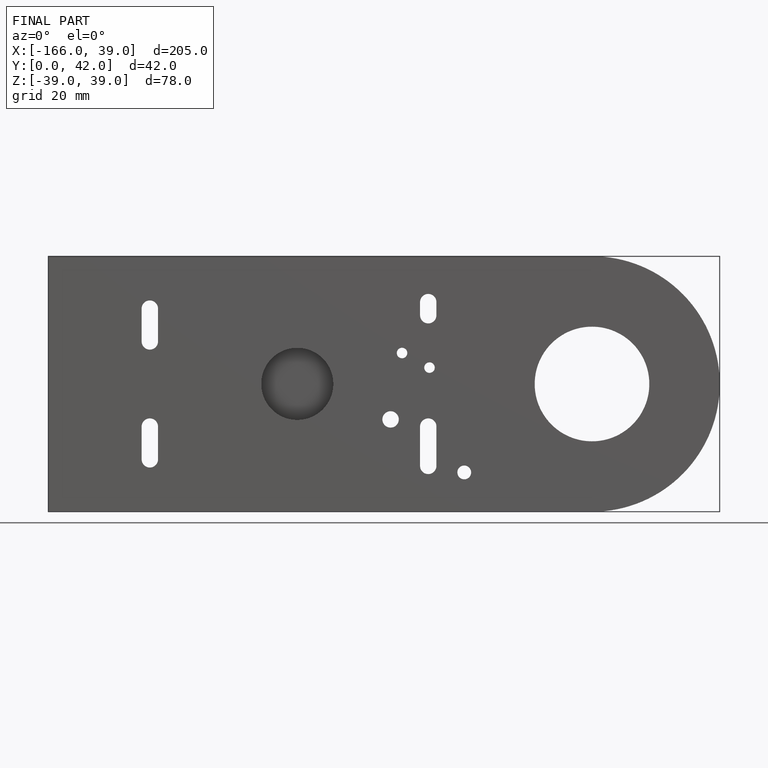
[diagram: finished part — front view with bounding-box wireframe]
